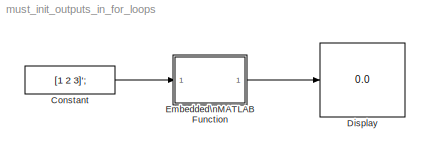
MODEL must_init_outputs_in_for_loops
KIND model
BLOCK [Constant] Constant
  SID = 1
  SampleTime = 1
  Value = [1 2 3]';
BLOCK [Display] Display
  Decimation = 1
  Ports = [1]
  SID = 2
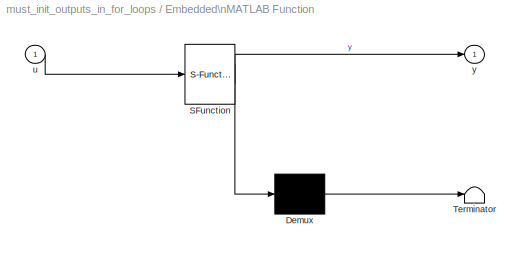
BLOCK [SubSystem] Embedded\nMATLAB Function
  ErrorFcn = Stateflow.Translate.translate
  PermitHierarchicalResolution = ExplicitOnly
  Ports = [1, 1]
  RequestExecContextInheritance = off
  SFBlockType = MATLAB Function
  SID = 3
  TreatAsAtomicUnit = on
BLOCK [Demux] Embedded\nMATLAB Function/ Demux 
  Outputs = 1
  Ports = [1, 1]
  SID = 3::7
BLOCK [S-Function] Embedded\nMATLAB Function/ SFunction 
  EnableBusSupport = off
  FunctionName = sf_sfun
  PortCounts = [1 2]
  Ports = [1, 2]
  SFcnIsStateOwnerBlock = off
  SFunctionDeploymentMode = off
  SID = 3::6
  Tag = Stateflow S-Function 2
BLOCK [Terminator] Embedded\nMATLAB Function/ Terminator 
  SID = 3::8
BLOCK [Inport] Embedded\nMATLAB Function/u
  IconDisplay = Port number
  SID = 3::1
BLOCK [Outport] Embedded\nMATLAB Function/y
  IconDisplay = Port number
  SID = 3::5
LINE Constant:1 -> Embedded\nMATLAB Function:1
LINE Embedded\nMATLAB Function/ Demux :1 -> Embedded\nMATLAB Function/ Terminator :1
LINE Embedded\nMATLAB Function/ SFunction :1 -> Embedded\nMATLAB Function/ Demux :1
LINE Embedded\nMATLAB Function/ SFunction :2 -> Embedded\nMATLAB Function/y:1
LINE Embedded\nMATLAB Function/u:1 -> Embedded\nMATLAB Function/ SFunction :1
LINE Embedded\nMATLAB Function:1 -> Display:1
CHART Embedded\nMATLAB Function states=1 transitions=1
  STATE_LABEL 'eML_blk_kernel()'
